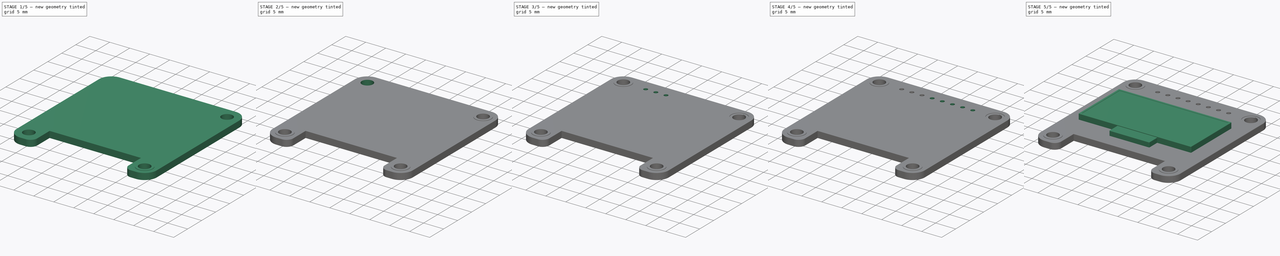
[diagram: build sequence overview — one tinted view per stage of 5, left to right]
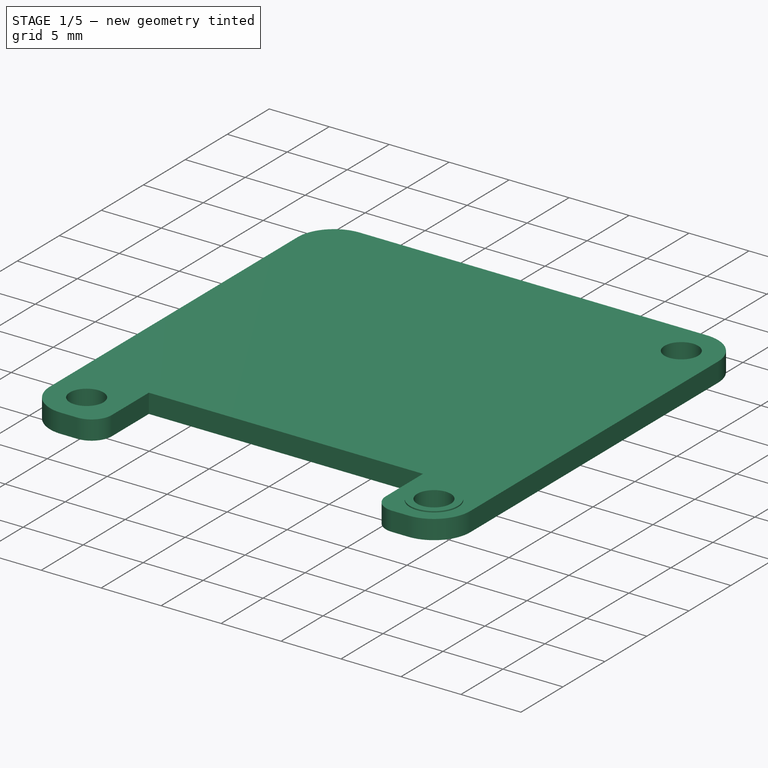
[diagram: stage 1 of 5 — iso view after this stage's code; geometry added in this stage tinted green]
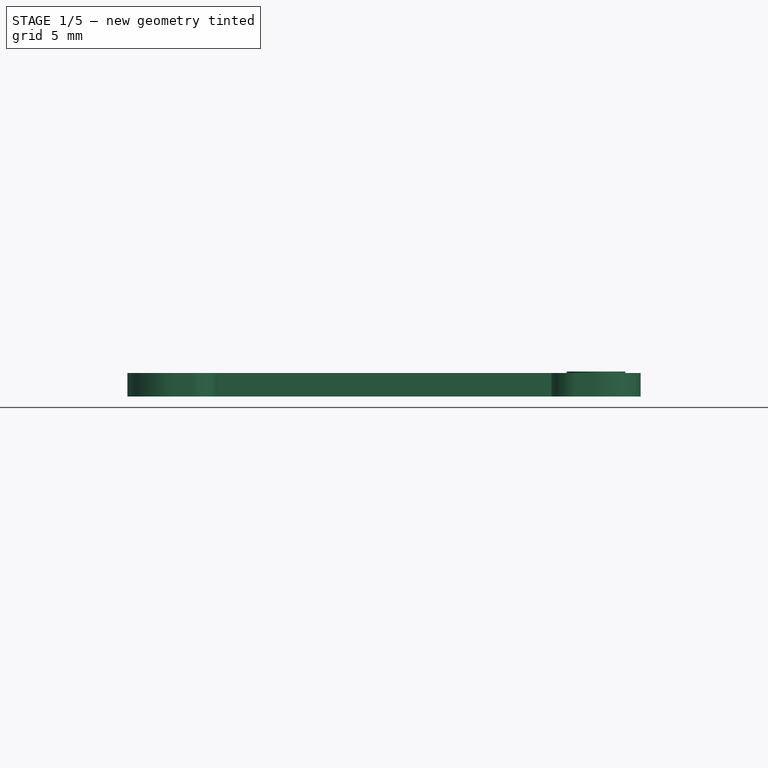
[diagram: stage 1 of 5 — front view after this stage's code; geometry added in this stage tinted green]
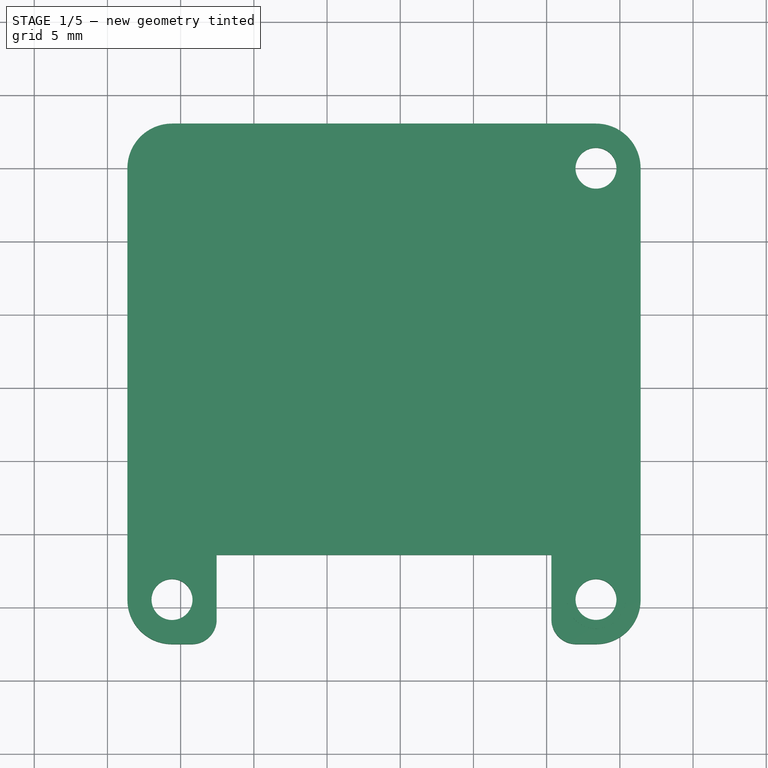
[diagram: stage 1 of 5 — top view after this stage's code; geometry added in this stage tinted green]
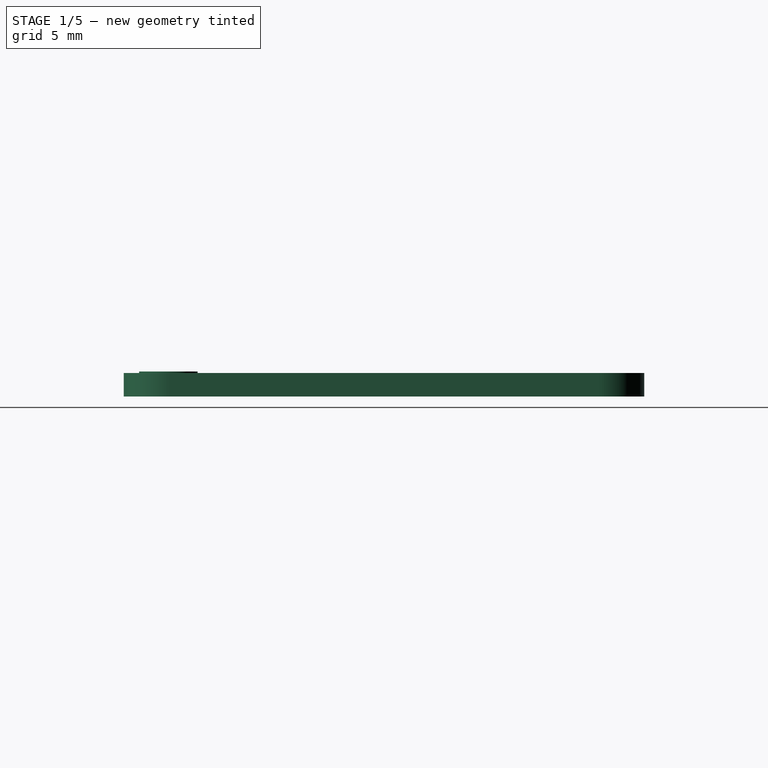
[diagram: stage 1 of 5 — right view after this stage's code; geometry added in this stage tinted green]
FCSTD DOCUMENT  (FreeCAD 0.17R11223 (Git))
Label: Adafruit_SSD1306_06
License: All rights reserved
LicenseURL: http://en.wikipedia.org/wiki/All_rights_reserved
objects: Part::Cylinder×20, Part::Cut×18, Part::Box×4, Part::Fillet×4, Part::MultiFuse×4, Sketcher::SketchObject×1, PartDesign::Pad×1, PartDesign::Body×1
note: 54 computed .brp shape members not serialized (recipe doc carries the construction recipe); baked Part::Feature solids carry a one-line shape summary decoded from their .brp

FEATURE [Sketcher::SketchObject] Sketch
  MapMode = 5
  Support = -> [XY_Plane]
  sketch-geometry (14):
    g0: LineSegment StartX=26.416 StartY=0 StartZ=0 EndX=26.416 EndY=-29.464 EndZ=0
    g1: LineSegment StartX=-8.636 StartY=-29.46 StartZ=0 EndX=-8.636 EndY=0 EndZ=0
    g2: ArcOfCircle CenterX=-5.588 CenterY=-29.46 CenterZ=0 NormalX=0 NormalY=0 NormalZ=1 Radius=3.048 StartAngle=3.14159 EndAngle=4.71239
    g3: ArcOfCircle CenterX=23.372 CenterY=-29.464 CenterZ=0 NormalX=0 NormalY=0 NormalZ=1 Radius=3.044 StartAngle=4.71239 EndAngle=6.28319
    g4: LineSegment StartX=-5.588 StartY=-32.508 StartZ=0 EndX=-4.236 EndY=-32.508 EndZ=0
    g5: LineSegment StartX=23.372 StartY=-32.508 StartZ=0 EndX=22.02 EndY=-32.508 EndZ=0
    g6: ArcOfCircle CenterX=-4.236 CenterY=-30.81 CenterZ=0 NormalX=0 NormalY=0 NormalZ=1 Radius=1.698 StartAngle=4.71239 EndAngle=6.28319
    g7: ArcOfCircle CenterX=22.02 CenterY=-30.81 CenterZ=0 NormalX=0 NormalY=0 NormalZ=1 Radius=1.698 StartAngle=3.14159 EndAngle=4.71239
    g8: LineSegment StartX=-2.538 StartY=-30.81 StartZ=0 EndX=-2.538 EndY=-26.412 EndZ=0
    g9: LineSegment StartX=-2.538 StartY=-26.412 StartZ=0 EndX=20.322 EndY=-26.412 EndZ=0
    g10: LineSegment StartX=20.322 StartY=-26.412 StartZ=0 EndX=20.322 EndY=-30.81 EndZ=0
    g11: ArcOfCircle CenterX=-5.588 CenterY=0 CenterZ=0 NormalX=0 NormalY=0 NormalZ=1 Radius=3.048 StartAngle=1.5708 EndAngle=3.14159
    g12: ArcOfCircle CenterX=23.368 CenterY=0 CenterZ=0 NormalX=0 NormalY=0 NormalZ=1 Radius=3.048 StartAngle=0 EndAngle=1.5708
    g13: LineSegment StartX=-5.588 StartY=3.048 StartZ=0 EndX=23.368 EndY=3.048 EndZ=0
  constraints (49):
    c: Vertical(g0)
    c: Vertical(g1)
    c: DistanceX(g1,g0) = 35.052
    c: Coincident(g2,g1)
    c: Coincident(g4,g2)
    c: Coincident(g5,g3)
    c: Horizontal(g5)
    c: Coincident(g6,g4)
    c: Coincident(g7,g5)
    c: Coincident(g8,g6)
    c: Coincident(g9,g8)
    c: Horizontal(g9)
    c: Coincident(g10,g9)
    c: Coincident(g10,g7)
    c: DistanceX(g0,g3) = 0
    c: DistanceY(g3,g0) = 0
    c: DistanceX(g4,g4) = 1.352
    c: DistanceX(g5,g5) = 1.352
    c: DistanceY(g2,g4) = 0
    c: DistanceX(g8,g8) = 0
    c: DistanceY(g6,g8) = 4.398
    c: DistanceX(g9,g7) = 0
    c: DistanceY(g7,g9) = 4.398
    c: DistanceX(g9,g9) = 22.86
    c: DistanceY(g6,g6) = 0
    c: DistanceX(g4,g6) = 0
    c: Radius(g6) = 1.698
    c: DistanceY(g7,g7) = 0
    c: DistanceX(g7,g5) = 0
    c: Radius(g7) = 1.698
    c: DistanceX(g2,g2) = 0
    c: DistanceY(g1,g2) = 0
    c: Radius(g2) = 3.048
    c: DistanceY(g0,g3) = 0
    c: DistanceX(g3,g3) = 0
    c: DistanceY(g0,g0) = 29.464
    c: Coincident(g11,g1)
    c: Coincident(g12,g0)
    c: Coincident(g13,g11)
    c: Coincident(g13,g12)
    c: Horizontal(g13)
    c: Radius(g11) = 3.048
    c: Radius(g12) = 3.048
    c: DistanceY(g11,g1) = 0
    c: DistanceX(g11,g11) = 0
    c: DistanceY(g12,g0) = 0
    c: DistanceX(g12,g12) = 0
    c: DistanceX(g1,g-1) = 8.636
    c: DistanceY(g-1,g11) = 3.048
FEATURE [PartDesign::Pad] Pad
  Length = 1.6
  Length2 = 100
  Profile = -> Sketch
  Type = 0
FEATURE [Part::Cylinder] Cylinder001
  Angle = 360
  AttacherType = Attacher::AttachEngine3D
  Height = 4
  Placement = pos=(23.368,-29.464,-1) rot=(0,0,1;0rad)
  Radius = 1.4
FEATURE [Part::Cylinder] Cylinder002
  Angle = 360
  AttacherType = Attacher::AttachEngine3D
  Height = 4
  Placement = pos=(23.368,0,-1) rot=(0,0,1;0rad)
  Radius = 1.4
FEATURE [Part::Cylinder] Cylinder003
  Angle = 360
  AttacherType = Attacher::AttachEngine3D
  Height = 4
  Placement = pos=(-5.588,-29.464,-1) rot=(0,0,1;0rad)
  Radius = 1.4
FEATURE [Part::Cut] Cut001
  Base = -> Body
  Tool = -> Cylinder003
FEATURE [Part::Cut] Cut002
  Base = -> Cut001
  Tool = -> Cylinder002
FEATURE [Part::Cut] Cut003
  Base = -> Cut002
  Tool = -> Cylinder001
FEATURE [Part::Cylinder] Cylinder021
  Angle = 360
  AttacherType = Attacher::AttachEngine3D
  Height = 4
  Placement = pos=(-5.588,0,-1) rot=(0,0,1;0rad)
  Radius = 1.4
FEATURE [Part::Cylinder] Cylinder022
  Angle = 360
  AttacherType = Attacher::AttachEngine3D
  Height = 0.2
  Placement = pos=(-5.588,0,1.5) rot=(0,0,1;0rad)
  Radius = 2
FEATURE [Part::Cut] Cut008
  Base = -> Cylinder022
  Placement = pos=(28.96,-29.46,0) rot=(0,0,1;0rad)
  Tool = -> Cylinder021
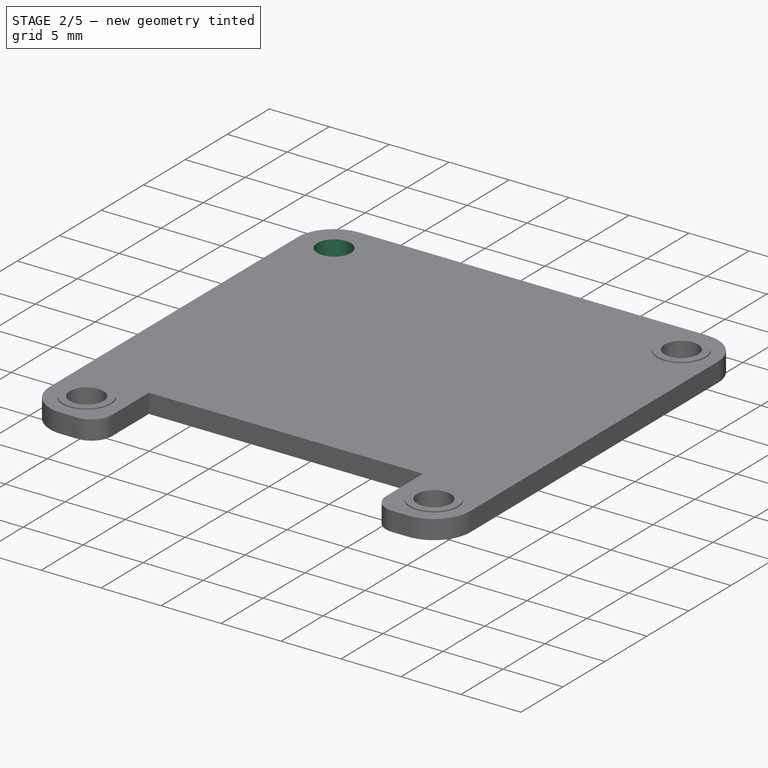
[diagram: stage 2 of 5 — iso view after this stage's code; geometry added in this stage tinted green]
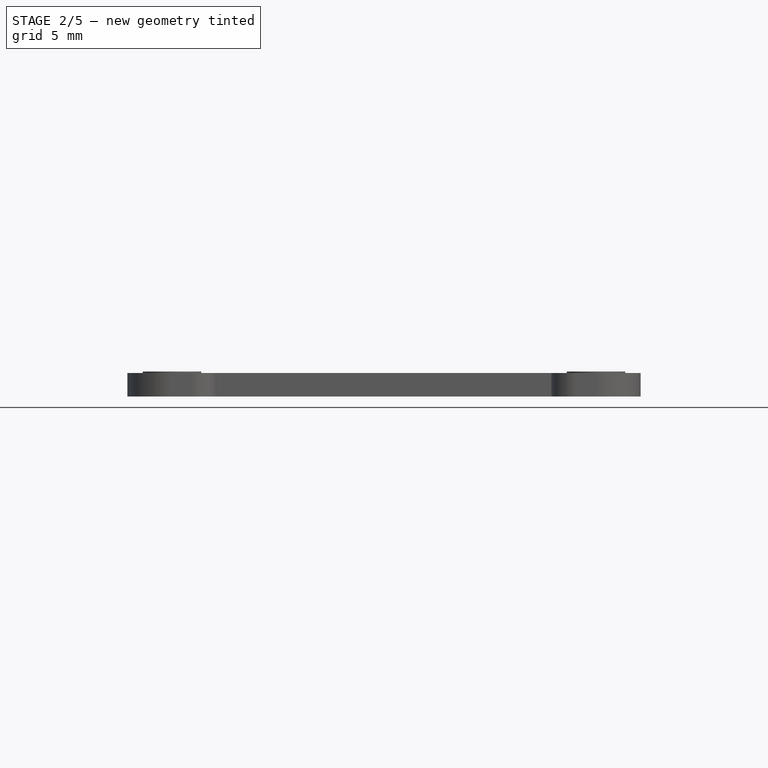
[diagram: stage 2 of 5 — front view after this stage's code; geometry added in this stage tinted green]
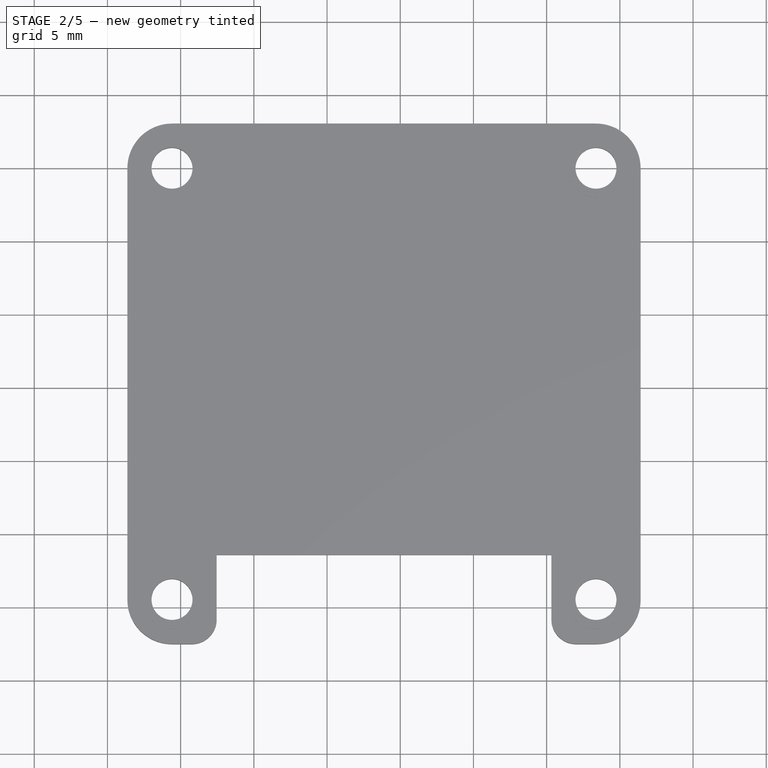
[diagram: stage 2 of 5 — top view after this stage's code; geometry added in this stage tinted green]
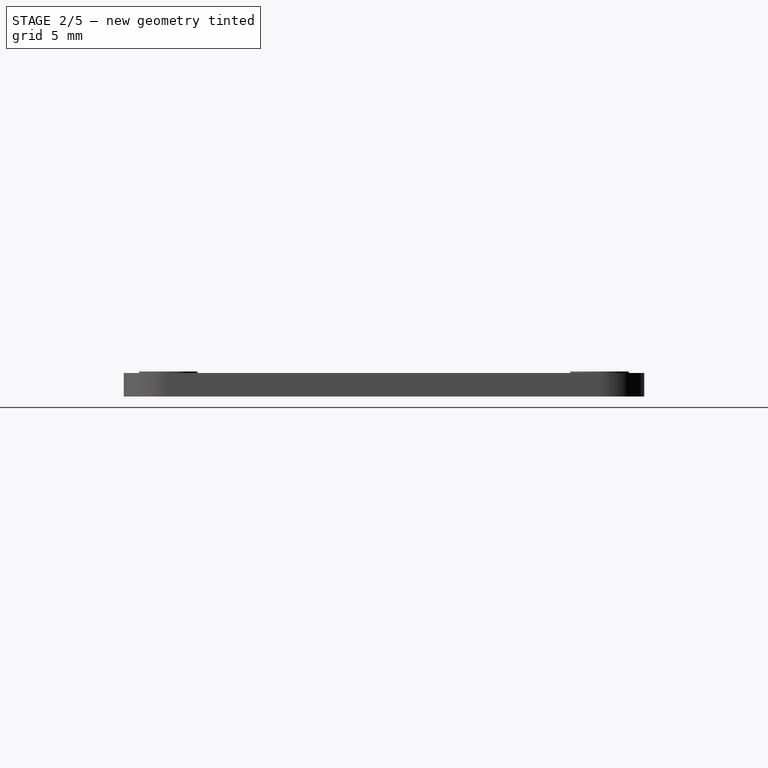
[diagram: stage 2 of 5 — right view after this stage's code; geometry added in this stage tinted green]
FEATURE [PartDesign::Body] Body
  Group = -> [Sketch,Pad]
  Origin = -> BodyOrigin
  Tip = -> Pad
FEATURE [Part::Cylinder] Cylinder
  Angle = 360
  AttacherType = Attacher::AttachEngine3D
  Height = 4
  Placement = pos=(-5.588,0,-1) rot=(0,0,1;0rad)
  Radius = 1.4
FEATURE [Part::Cut] Cut004
  Base = -> Cut003
  Tool = -> Cylinder
FEATURE [Part::Cylinder] Cylinder017
  Angle = 360
  AttacherType = Attacher::AttachEngine3D
  Height = 4
  Placement = pos=(-5.588,0,-1) rot=(0,0,1;0rad)
  Radius = 1.4
FEATURE [Part::Cylinder] Cylinder018
  Angle = 360
  AttacherType = Attacher::AttachEngine3D
  Height = 0.2
  Placement = pos=(-5.588,0,1.5) rot=(0,0,1;0rad)
  Radius = 2
FEATURE [Part::Cut] Cut006
  Base = -> Cylinder018
  Placement = pos=(28.96,0,0) rot=(0,0,1;0rad)
  Tool = -> Cylinder017
FEATURE [Part::Cylinder] Cylinder019
  Angle = 360
  AttacherType = Attacher::AttachEngine3D
  Height = 4
  Placement = pos=(-5.588,0,-1) rot=(0,0,1;0rad)
  Radius = 1.4
FEATURE [Part::Cylinder] Cylinder020
  Angle = 360
  AttacherType = Attacher::AttachEngine3D
  Height = 0.2
  Placement = pos=(-5.588,0,1.5) rot=(0,0,1;0rad)
  Radius = 2
FEATURE [Part::Cut] Cut007
  Base = -> Cylinder020
  Placement = pos=(0,-29.46,0) rot=(0,0,1;0rad)
  Tool = -> Cylinder019
FEATURE [Part::MultiFuse] Fusion001
  Shapes = -> [Cut004,Cut008]
FEATURE [Part::MultiFuse] Fusion002
  Shapes = -> [Fusion001,Cut007]
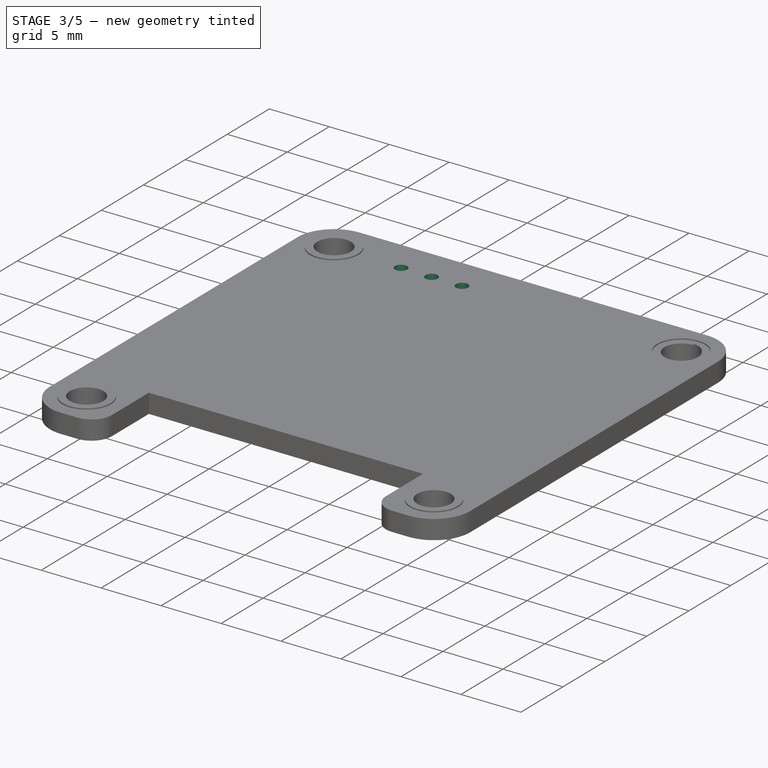
[diagram: stage 3 of 5 — iso view after this stage's code; geometry added in this stage tinted green]
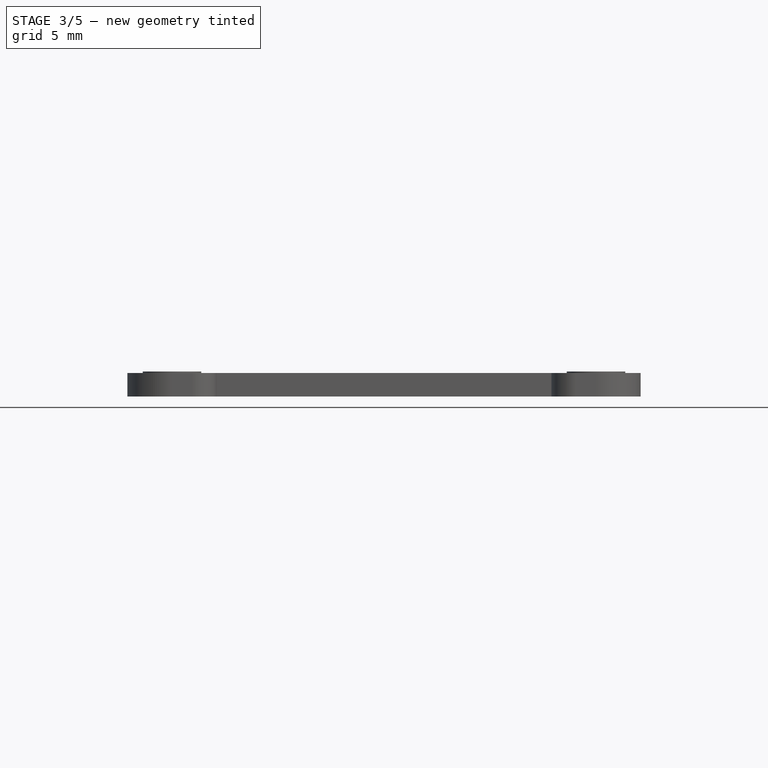
[diagram: stage 3 of 5 — front view after this stage's code; geometry added in this stage tinted green]
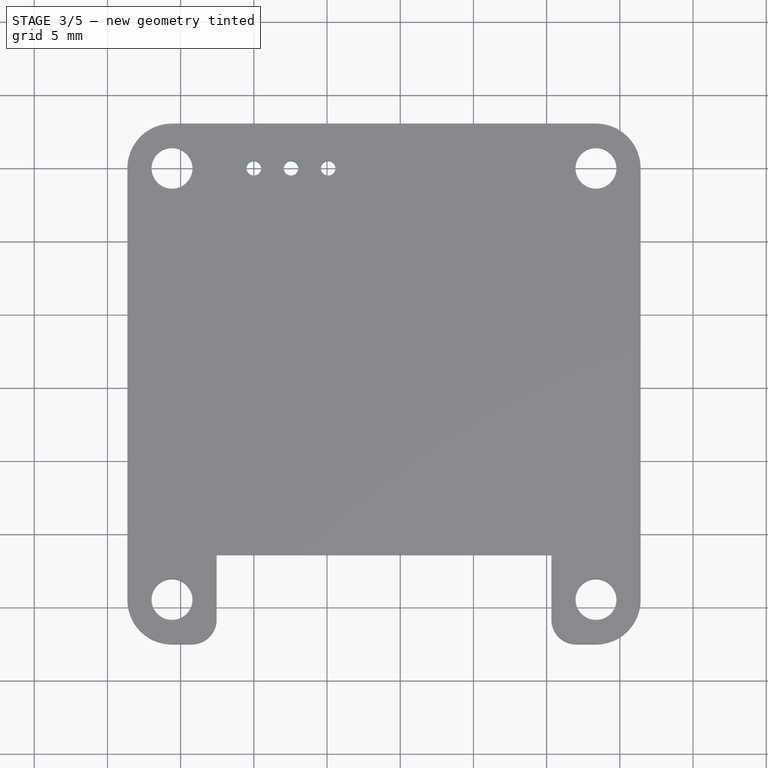
[diagram: stage 3 of 5 — top view after this stage's code; geometry added in this stage tinted green]
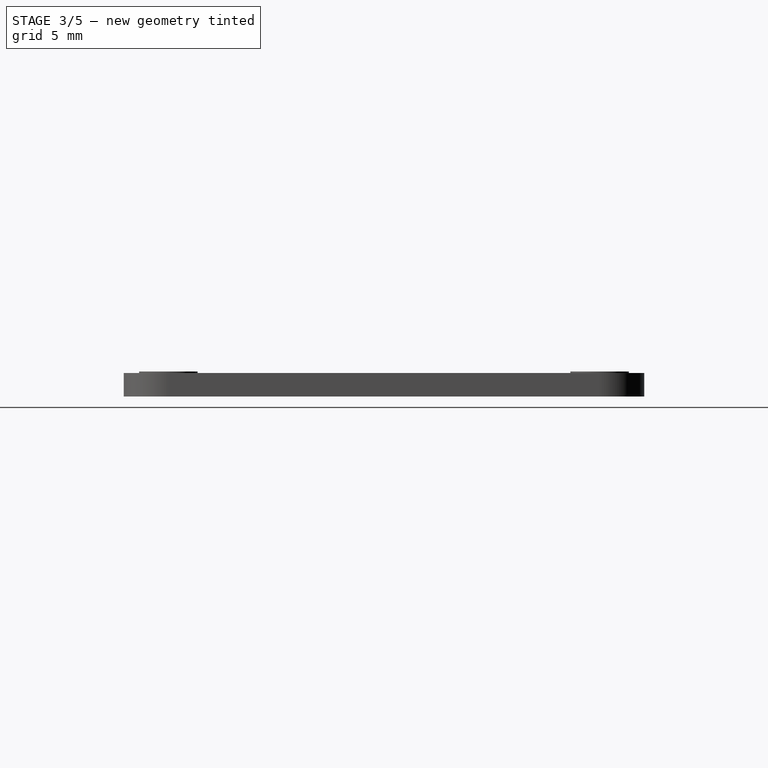
[diagram: stage 3 of 5 — right view after this stage's code; geometry added in this stage tinted green]
FEATURE [Part::Cylinder] Cylinder004  label="Pin001"
  Angle = 360
  AttacherType = Attacher::AttachEngine3D
  Height = 4
  Placement = pos=(0,0,-1) rot=(0,0,1;0rad)
  Radius = 0.5
FEATURE [Part::Cylinder] Cylinder005  label="Pin002"
  Angle = 360
  AttacherType = Attacher::AttachEngine3D
  Height = 4
  Placement = pos=(2.54,0,-1) rot=(0,0,1;0rad)
  Radius = 0.5
FEATURE [Part::Cylinder] Cylinder006  label="Pin003"
  Angle = 360
  AttacherType = Attacher::AttachEngine3D
  Height = 4
  Placement = pos=(5.08,0,-1) rot=(0,0,1;0rad)
  Radius = 0.5
FEATURE [Part::Cylinder] Cylinder012
  Angle = 360
  AttacherType = Attacher::AttachEngine3D
  Height = 4
  Placement = pos=(-5.588,0,-1) rot=(0,0,1;0rad)
  Radius = 1.4
FEATURE [Part::Cylinder] Cylinder016
  Angle = 360
  AttacherType = Attacher::AttachEngine3D
  Height = 0.2
  Placement = pos=(-5.588,0,1.5) rot=(0,0,1;0rad)
  Radius = 2
FEATURE [Part::Cut] Cut005
  Base = -> Cylinder016
  Tool = -> Cylinder012
FEATURE [Part::Cut] Cut009
  Base = -> Fusion002
  Tool = -> Cut006
FEATURE [Part::MultiFuse] Fusion003
  Shapes = -> [Cut009,Cut005]
FEATURE [Part::Cut] Cut010
  Base = -> Fusion003
  Tool = -> Cylinder004
FEATURE [Part::Cut] Cut011
  Base = -> Cut010
  Tool = -> Cylinder006
FEATURE [Part::Cut] Cut012
  Base = -> Cut011
  Tool = -> Cylinder005
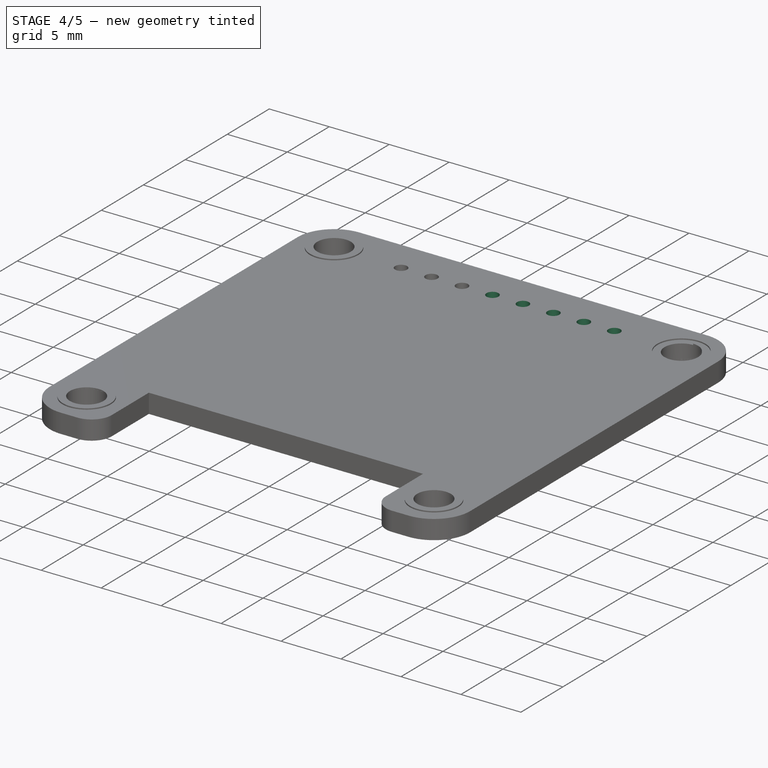
[diagram: stage 4 of 5 — iso view after this stage's code; geometry added in this stage tinted green]
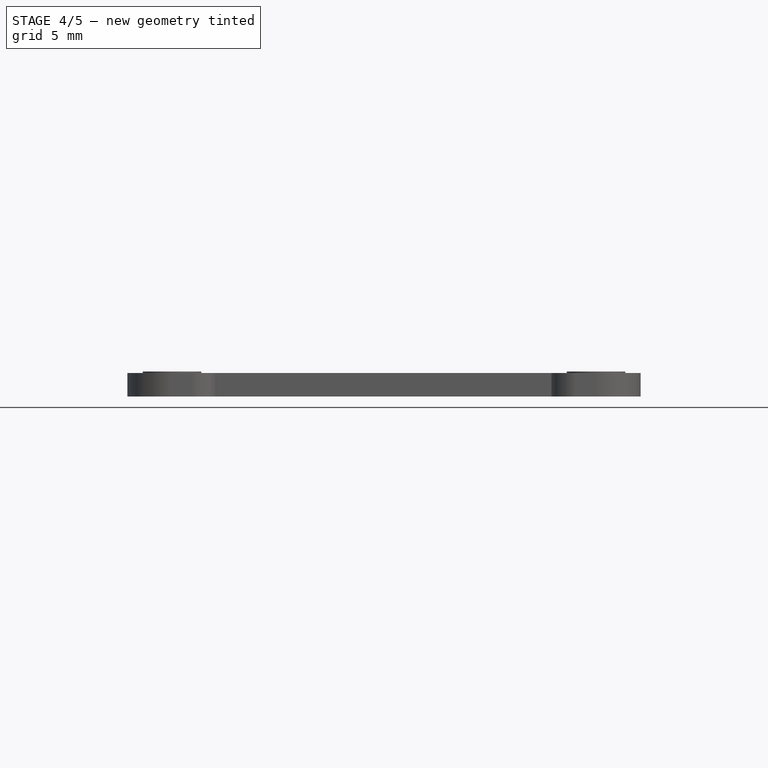
[diagram: stage 4 of 5 — front view after this stage's code; geometry added in this stage tinted green]
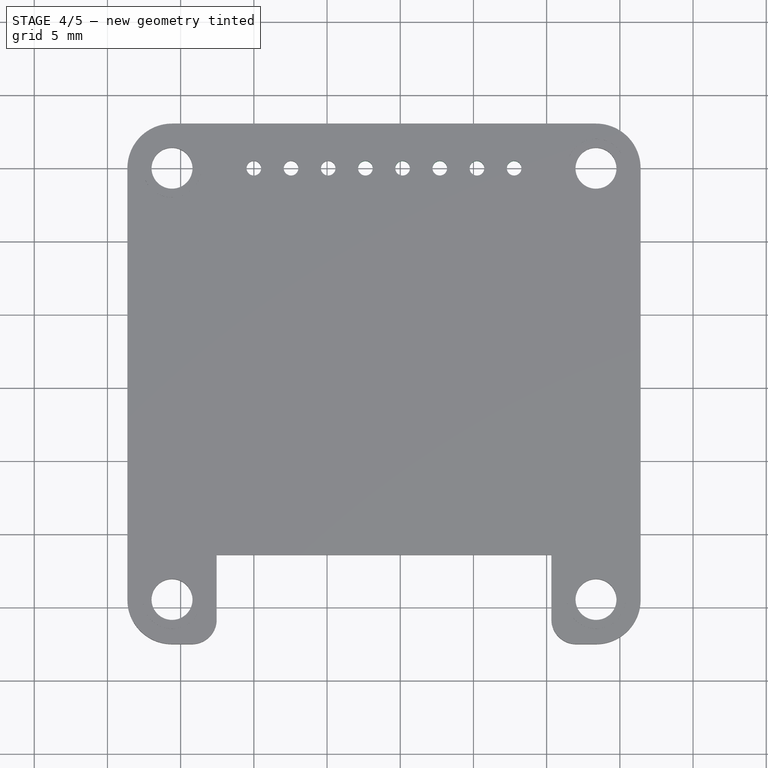
[diagram: stage 4 of 5 — top view after this stage's code; geometry added in this stage tinted green]
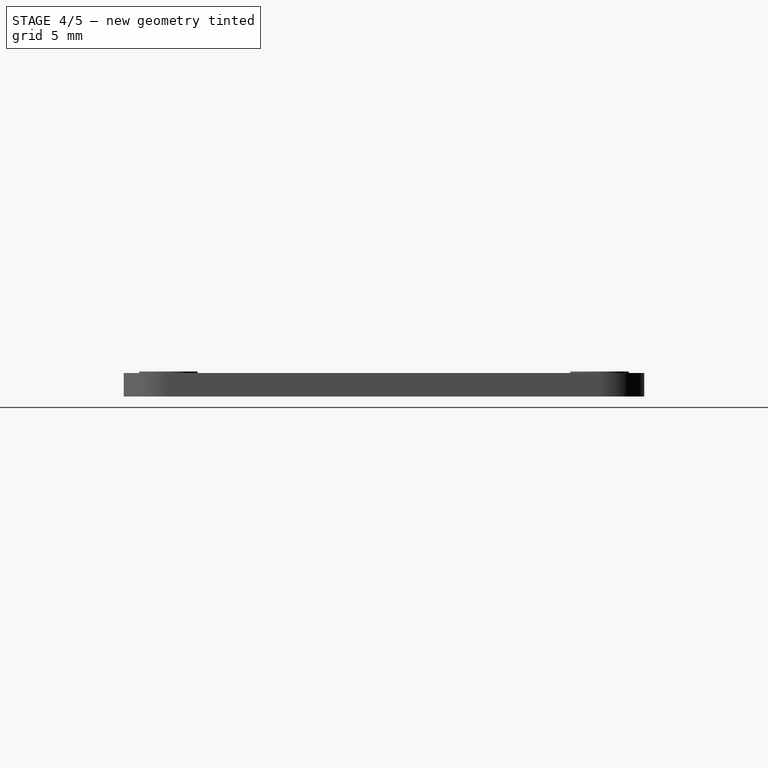
[diagram: stage 4 of 5 — right view after this stage's code; geometry added in this stage tinted green]
FEATURE [Part::Cylinder] Cylinder007  label="Pin004"
  Angle = 360
  AttacherType = Attacher::AttachEngine3D
  Height = 4
  Placement = pos=(7.62,0,-1) rot=(0,0,1;0rad)
  Radius = 0.5
FEATURE [Part::Cylinder] Cylinder008  label="Pin005"
  Angle = 360
  AttacherType = Attacher::AttachEngine3D
  Height = 4
  Placement = pos=(10.16,0,-1) rot=(0,0,1;0rad)
  Radius = 0.5
FEATURE [Part::Cylinder] Cylinder009  label="Pin006"
  Angle = 360
  AttacherType = Attacher::AttachEngine3D
  Height = 4
  Placement = pos=(12.7,0,-1) rot=(0,0,1;0rad)
  Radius = 0.5
FEATURE [Part::Cylinder] Cylinder010  label="Pin007"
  Angle = 360
  AttacherType = Attacher::AttachEngine3D
  Height = 4
  Placement = pos=(15.24,0,-1) rot=(0,0,1;0rad)
  Radius = 0.5
FEATURE [Part::Cylinder] Cylinder011  label="Pin008"
  Angle = 360
  AttacherType = Attacher::AttachEngine3D
  Height = 4
  Placement = pos=(17.78,0,-1) rot=(0,0,1;0rad)
  Radius = 0.5
FEATURE [Part::Cut] Cut013
  Base = -> Cut012
  Tool = -> Cylinder007
FEATURE [Part::Cut] Cut014
  Base = -> Cut013
  Tool = -> Cylinder008
FEATURE [Part::Cut] Cut015
  Base = -> Cut014
  Tool = -> Cylinder009
FEATURE [Part::Cut] Cut016
  Base = -> Cut015
  Tool = -> Cylinder010
FEATURE [Part::Cut] Cut017
  Base = -> Cut016
  Tool = -> Cylinder011
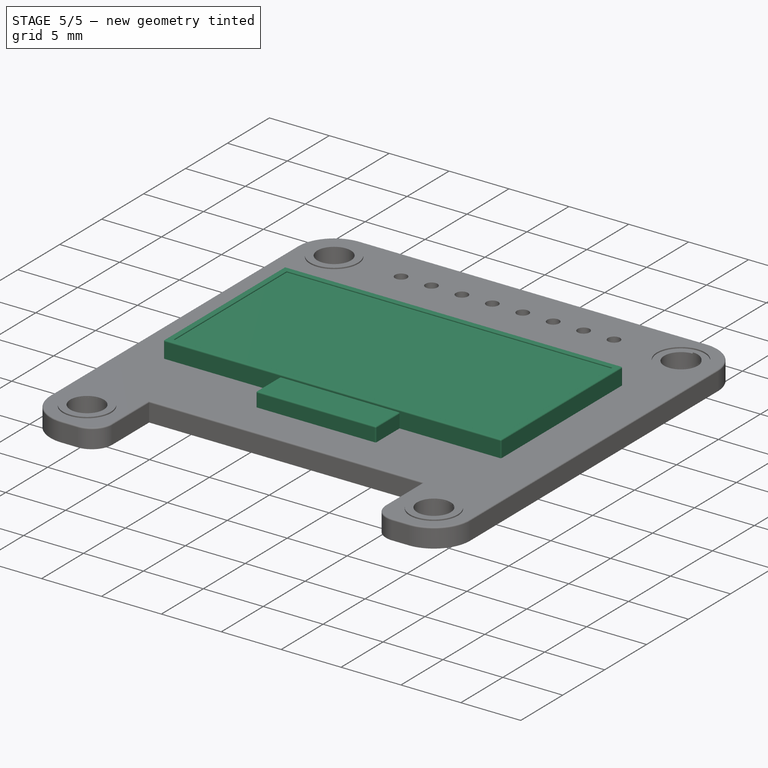
[diagram: stage 5 of 5 — iso view after this stage's code; geometry added in this stage tinted green]
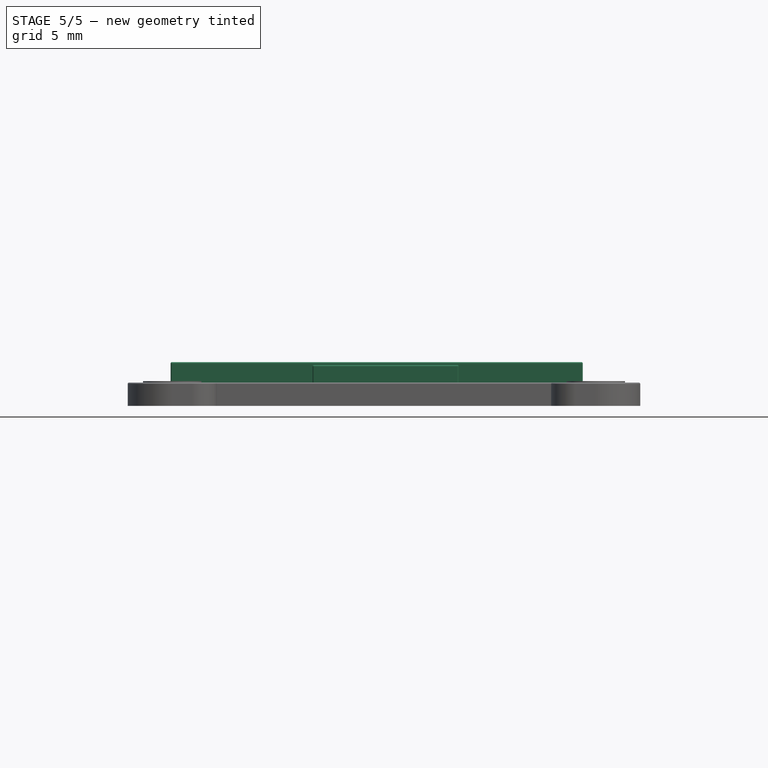
[diagram: stage 5 of 5 — front view after this stage's code; geometry added in this stage tinted green]
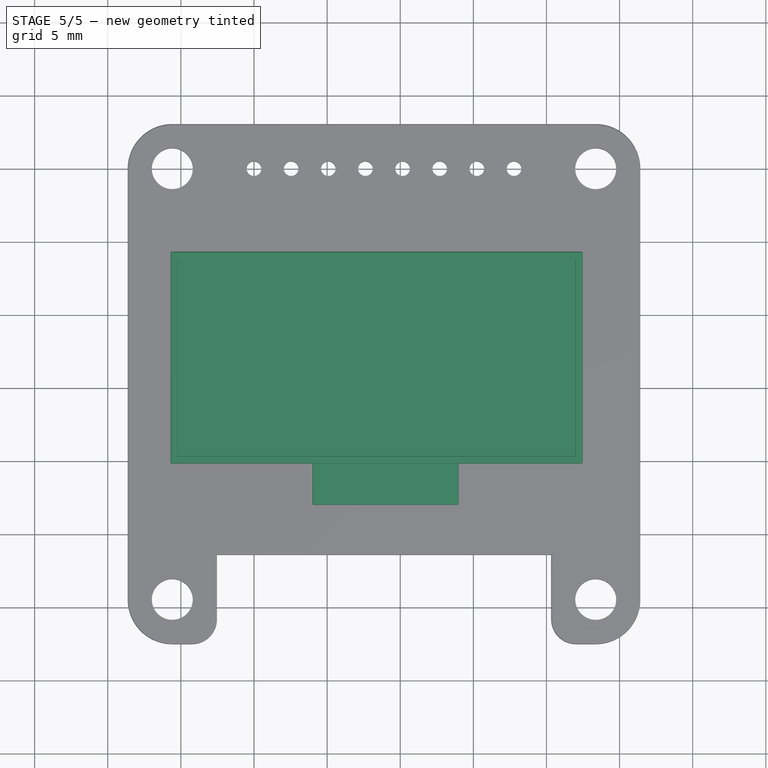
[diagram: stage 5 of 5 — top view after this stage's code; geometry added in this stage tinted green]
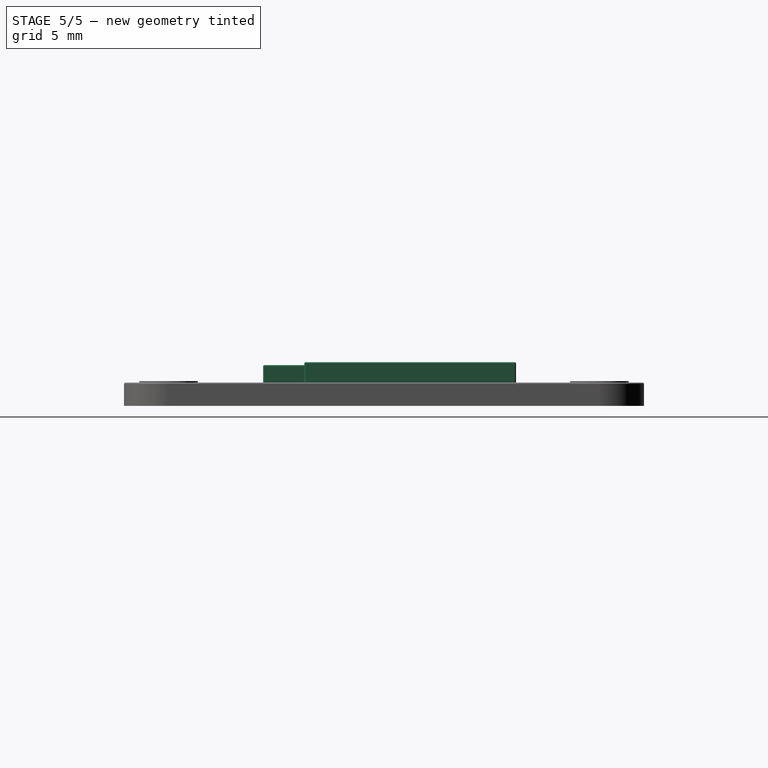
[diagram: stage 5 of 5 — right view after this stage's code; geometry added in this stage tinted green]
FEATURE [Part::Box] Box  label="Display"
  AttacherType = Attacher::AttachEngine3D
  Height = 0.2
  Length = 27.18
  Placement = pos=(-5.2,-19.68,2.7) rot=(0,0,1;0rad)
  Width = 13.48
FEATURE [Part::Box] Box001  label="Kub001"
  AttacherType = Attacher::AttachEngine3D
  Height = 1.5
  Length = 28.18
  Placement = pos=(-5.7,-20.18,1.5) rot=(0,0,1;0rad)
  Width = 14.48
FEATURE [Part::Box] Box002  label="Kub002"
  AttacherType = Attacher::AttachEngine3D
  Height = 0.2
  Length = 27.18
  Placement = pos=(-5.2,-19.68,2.9) rot=(0,0,1;0rad)
  Width = 13.48
FEATURE [Part::Cut] Cut
  Base = -> Box001
  Tool = -> Box002
FEATURE [Part::Fillet] Fillet
  Base = -> Cut
  Edges = 4 edges r=0.05: [Edge10,Edge11,Edge12,Edge13]
FEATURE [Part::Fillet] Fillet001
  Base = -> Fillet
  Edges = 8 edges r=0.1: [Edge5,Edge6,Edge7,Edge8,Edge17,Edge18,Edge21,Edge23]
FEATURE [Part::Box] Box003  label="Kub003"
  AttacherType = Attacher::AttachEngine3D
  Height = 1.3
  Length = 10
  Placement = pos=(4,-23,1.5) rot=(0,0,1;0rad)
  Width = 10
FEATURE [Part::Fillet] Fillet002
  Base = -> Box003
  Edges = 5 edges r=0.1: [Edge1,Edge2,Edge5,Edge6,Edge10]
FEATURE [Part::MultiFuse] Fusion  label="Display frame"
  Shapes = -> [Fillet002,Fillet001]
FEATURE [Part::Fillet] Fillet003
  Base = -> Cut017
  Edges = 14 edges r=0.1: [Edge4,Edge7,Edge10,Edge34,Edge35,Edge36,Edge37,Edge38,Edge39,Edge40,Edge41,Edge42,Edge43,Edge44]
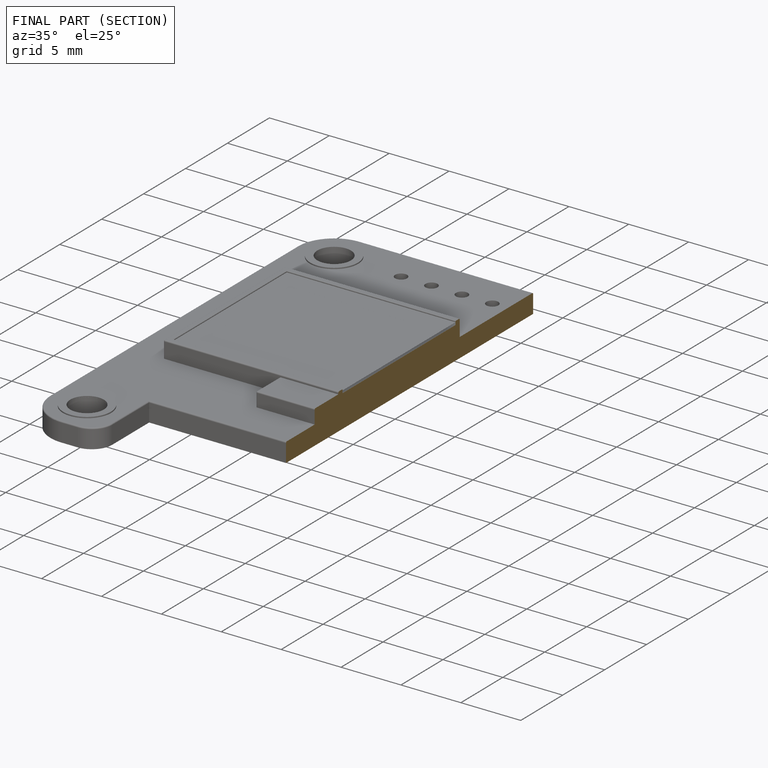
[diagram: finished part — half-section view (interior)]
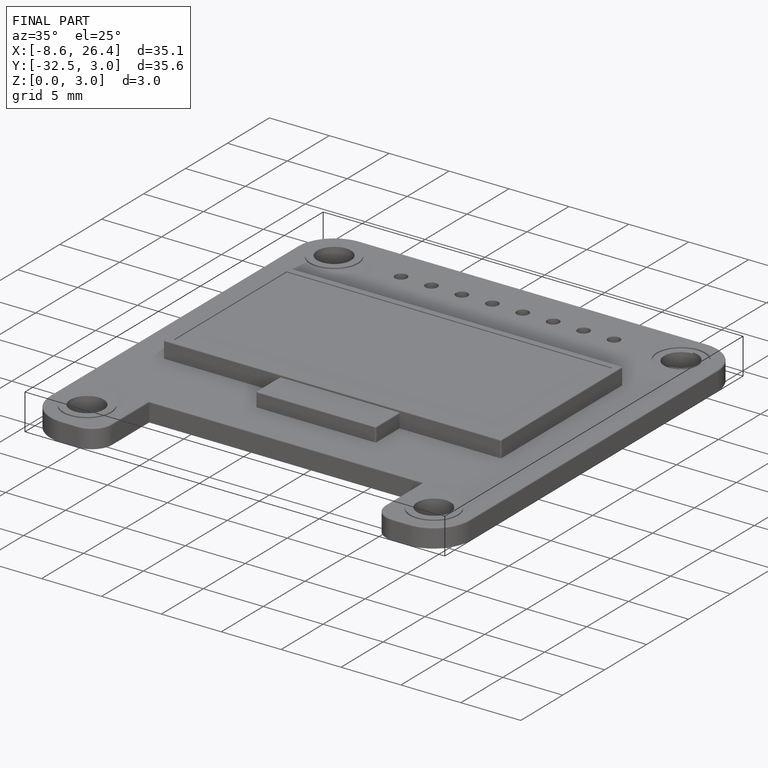
[diagram: finished part — iso view with bounding-box wireframe]
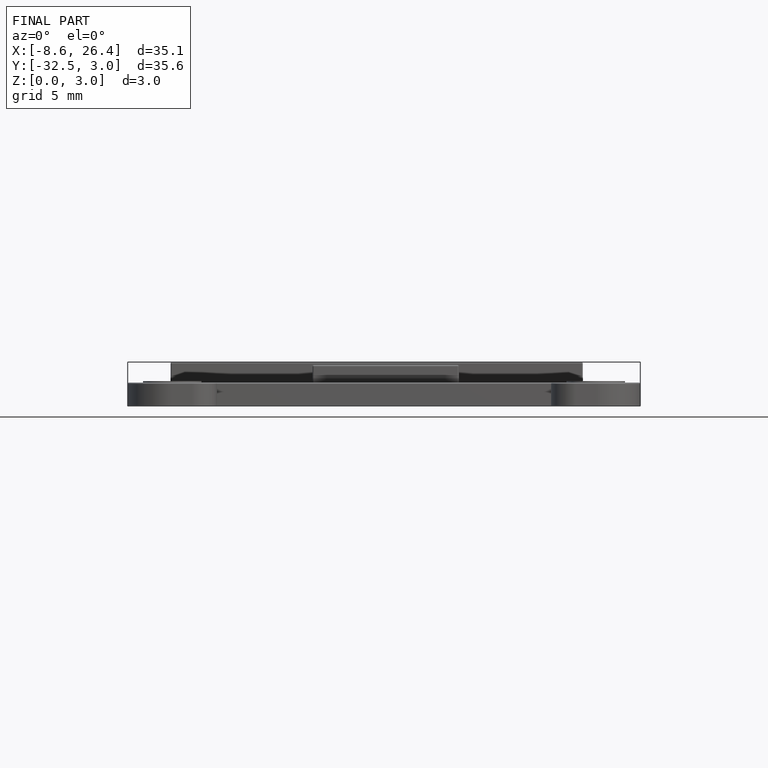
[diagram: finished part — front view with bounding-box wireframe]
